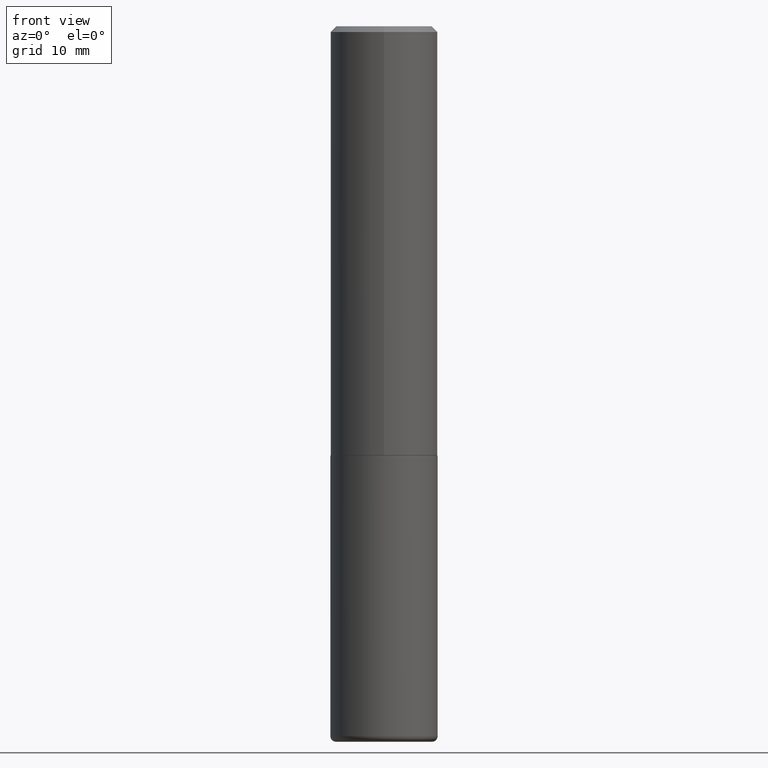
[diagram: clean part render]
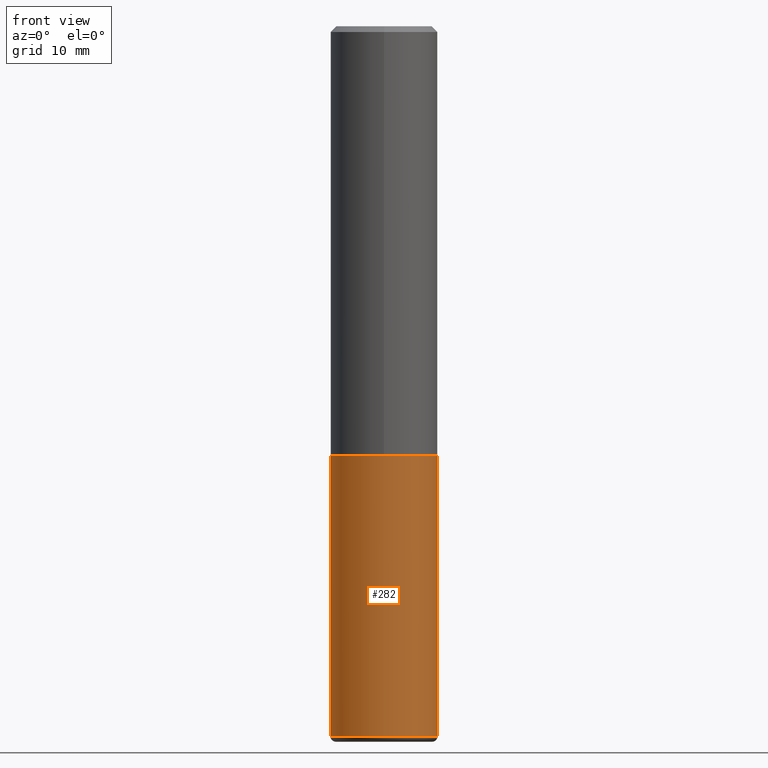
[diagram: same view with one face highlighted and labeled with its STEP entity id]
A machine part, front view. The second image highlights one B-rep face of the part: STEP entity #282.
In plain terms, the highlighted cylindrical surface (partial cylindrical patch) has radius 4.7625 mm, axis along (-0, 0, 1).
Its self-contained STEP definition (entity closure, byte-faithful):
#7 = DIRECTION ( 'NONE',  ( 1.000000000000000000, -6.982962677686265922E-15, 4.876176775795935793E-29 ) ) ;
#9 = CARTESIAN_POINT ( 'NONE',  ( 0.1875000000000000278, -6.546527510330893974E-15, -1.500000000000000222 ) ) ;
#24 = EDGE_CURVE ( 'NONE', #201, #330, #318, .T. ) ;
#25 = EDGE_LOOP ( 'NONE', ( #392, #364, #362, #138 ) ) ;
#36 = LINE ( 'NONE', #359, #58 ) ;
#58 = VECTOR ( 'NONE', #77, 39.37007874015748143 ) ;
#75 = CARTESIAN_POINT ( 'NONE',  ( -0.1875000000000001110, -7.326606090780813796E-15, -2.480000000000000426 ) ) ;
#77 = DIRECTION ( 'NONE',  ( -2.445468806185136877E-29, 3.491481338843145188E-15, 1.000000000000000000 ) ) ;
#81 = LINE ( 'NONE', #341, #337 ) ;
#111 = DIRECTION ( 'NONE',  ( -2.445468806185136597E-29, 3.491481338843145583E-15, 1.000000000000000000 ) ) ;
#113 = AXIS2_PLACEMENT_3D ( 'NONE', #243, #304, #7 ) ;
#130 = CARTESIAN_POINT ( 'NONE',  ( -0.1875000000000000278, -5.615780234747672457E-15, -1.500000000000000222 ) ) ;
#138 = ORIENTED_EDGE ( 'NONE', *, *, #295, .F. ) ;
#143 = VERTEX_POINT ( 'NONE', #130 ) ;
#178 = FACE_OUTER_BOUND ( 'NONE', #25, .T. ) ;
#179 = DIRECTION ( 'NONE',  ( -2.445468806185136597E-29, 3.491481338843145583E-15, 1.000000000000000000 ) ) ;
#188 = AXIS2_PLACEMENT_3D ( 'NONE', #225, #179, #368 ) ;
#201 = VERTEX_POINT ( 'NONE', #75 ) ;
#225 = CARTESIAN_POINT ( 'NONE',  ( 6.064762639339139522E-29, -8.658873720331001644E-15, -2.480000000000000426 ) ) ;
#243 = CARTESIAN_POINT ( 'NONE',  ( 0.000000000000000000, 0.000000000000000000, 0.000000000000000000 ) ) ;
#254 = EDGE_CURVE ( 'NONE', #201, #143, #36, .T. ) ;
#276 = DIRECTION ( 'NONE',  ( 1.000000000000000000, -6.982962677686266711E-15, 0.000000000000000000 ) ) ;
#282 = ADVANCED_FACE ( 'NONE', ( #178 ), #310, .T. ) ;
#289 = DIRECTION ( 'NONE',  ( -2.445468806185136877E-29, 3.491481338843145188E-15, 1.000000000000000000 ) ) ;
#295 = EDGE_CURVE ( 'NONE', #143, #334, #297, .T. ) ;
#297 = CIRCLE ( 'NONE', #348, 0.1875000000000000278 ) ;
#304 = DIRECTION ( 'NONE',  ( -2.445468806185136597E-29, 3.491481338843145583E-15, 1.000000000000000000 ) ) ;
#310 = CYLINDRICAL_SURFACE ( 'NONE', #113, 0.1875000000000000278 ) ;
#318 = CIRCLE ( 'NONE', #188, 0.1875000000000000278 ) ;
#330 = VERTEX_POINT ( 'NONE', #339 ) ;
#334 = VERTEX_POINT ( 'NONE', #9 ) ;
#337 = VECTOR ( 'NONE', #289, 39.37007874015748143 ) ;
#339 = CARTESIAN_POINT ( 'NONE',  ( 0.1875000000000001110, -9.968179222397176653E-15, -2.480000000000000426 ) ) ;
#341 = CARTESIAN_POINT ( 'NONE',  ( 0.1875000000000000278, -1.309305502066175008E-15, 9.142831454617381013E-30 ) ) ;
#348 = AXIS2_PLACEMENT_3D ( 'NONE', #395, #111, #276 ) ;
#359 = CARTESIAN_POINT ( 'NONE',  ( -0.1875000000000000278, 1.332267629550188046E-15, -9.223003294227947991E-30 ) ) ;
#362 = ORIENTED_EDGE ( 'NONE', *, *, #408, .T. ) ;
#364 = ORIENTED_EDGE ( 'NONE', *, *, #24, .T. ) ;
#368 = DIRECTION ( 'NONE',  ( 1.000000000000000000, -6.982962677686261189E-15, 0.000000000000000000 ) ) ;
#392 = ORIENTED_EDGE ( 'NONE', *, *, #254, .F. ) ;
#395 = CARTESIAN_POINT ( 'NONE',  ( 3.668203209277704895E-29, -5.237222008264718177E-15, -1.500000000000000222 ) ) ;
#408 = EDGE_CURVE ( 'NONE', #330, #334, #81, .T. ) ;